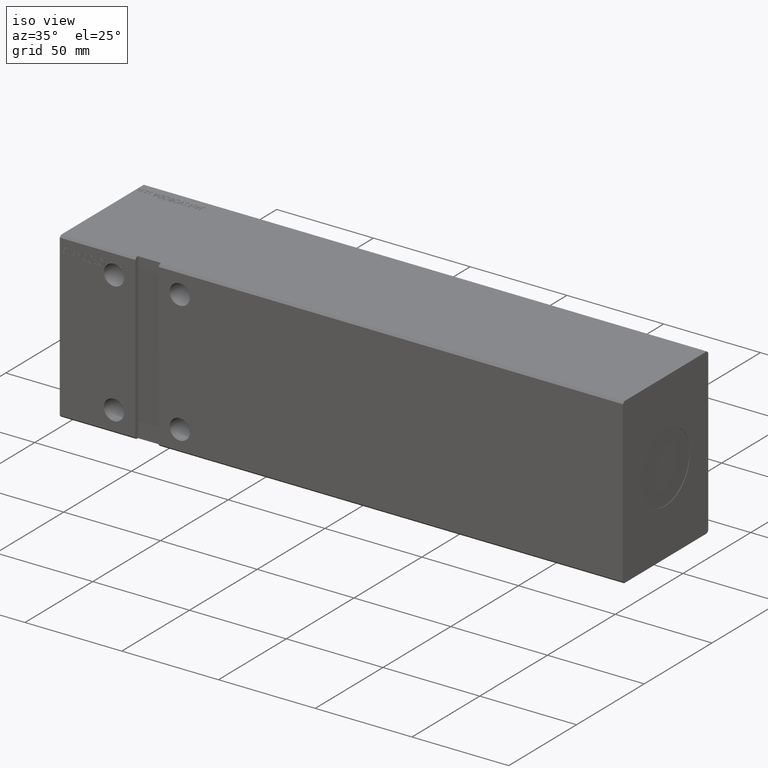
[diagram: clean part render]
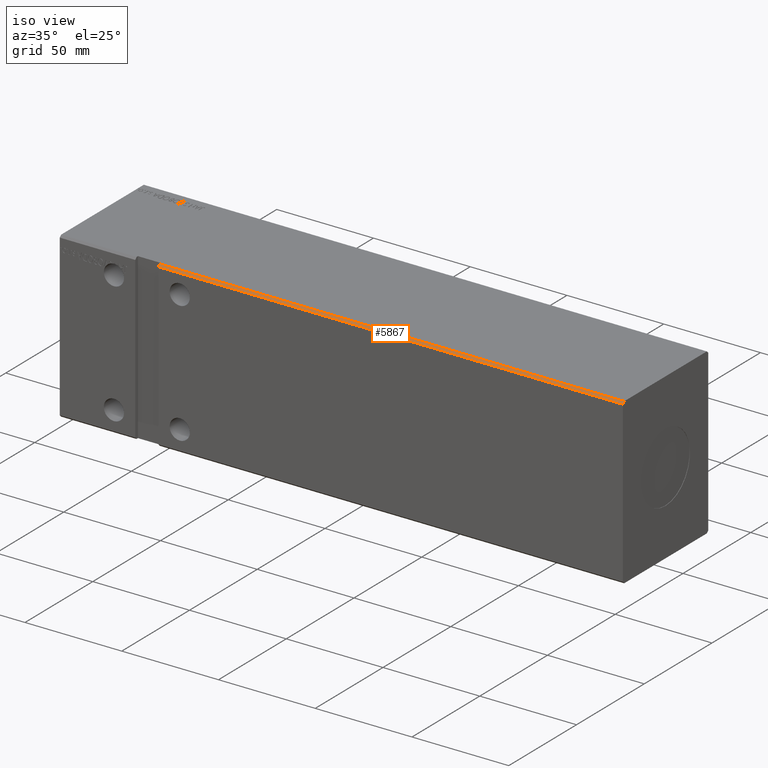
[diagram: same view with one face highlighted and labeled with its STEP entity id]
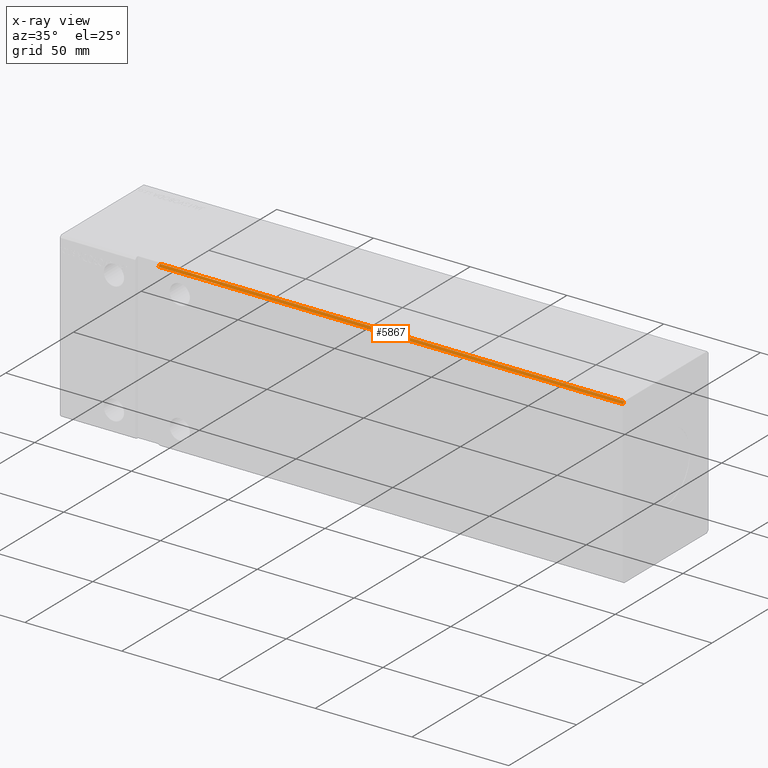
[diagram: x-ray of the same camera — body ghosted, the highlighted face saturated]
A machine part, iso view. The second image highlights one B-rep face of the part: STEP entity #5867.
The next image is the same camera in x-ray: the body ghosted, the highlighted face saturated — about 0% of this face is hidden behind the body in this view.
In plain terms, the highlighted planar face has unit normal (0, 0.7071, -0.7071).
Its self-contained STEP definition (entity closure, byte-faithful):
#113 = LINE ( 'NONE', #21667, #705 ) ;
#705 = VECTOR ( 'NONE', #31799, 1000.000000000000000 ) ;
#712 = VERTEX_POINT ( 'NONE', #15447 ) ;
#776 = EDGE_CURVE ( 'NONE', #712, #31767, #22275, .T. ) ;
#1405 = EDGE_CURVE ( 'NONE', #12175, #712, #113, .T. ) ;
#2036 = VECTOR ( 'NONE', #40970, 999.9999999999998863 ) ;
#2099 = ORIENTED_EDGE ( 'NONE', *, *, #1405, .T. ) ;
#4350 = LINE ( 'NONE', #29410, #14008 ) ;
#5867 = ADVANCED_FACE ( 'NONE', ( #25725 ), #18690, .F. ) ;
#6073 = EDGE_CURVE ( 'NONE', #12175, #24454, #40763, .T. ) ;
#6340 = CARTESIAN_POINT ( 'NONE',  ( 291.0000000000000000, -31.50000000000000000, 41.49999999999999289 ) ) ;
#6528 = EDGE_LOOP ( 'NONE', ( #2099, #19475, #30870, #22231 ) ) ;
#11993 = CARTESIAN_POINT ( 'NONE',  ( 291.0000000000000000, -30.50000000000000355, 42.49999999999999289 ) ) ;
#12175 = VERTEX_POINT ( 'NONE', #11993 ) ;
#14008 = VECTOR ( 'NONE', #26513, 1000.000000000000000 ) ;
#15104 = CARTESIAN_POINT ( 'NONE',  ( 51.00000000000000000, -31.50000000000000000, 41.49999999999999289 ) ) ;
#15447 = CARTESIAN_POINT ( 'NONE',  ( 51.00000000000000000, -30.50000000000000355, 42.49999999999999289 ) ) ;
#15480 = EDGE_CURVE ( 'NONE', #24454, #31767, #4350, .T. ) ;
#18690 = PLANE ( 'NONE',  #26504 ) ;
#19475 = ORIENTED_EDGE ( 'NONE', *, *, #776, .T. ) ;
#21667 = CARTESIAN_POINT ( 'NONE',  ( 291.0000000000000000, -30.50000000000000355, 42.49999999999999289 ) ) ;
#21941 = CARTESIAN_POINT ( 'NONE',  ( 291.0000000000000000, -30.50000000000000355, 42.49999999999999289 ) ) ;
#22231 = ORIENTED_EDGE ( 'NONE', *, *, #6073, .F. ) ;
#22275 = LINE ( 'NONE', #23093, #22462 ) ;
#22462 = VECTOR ( 'NONE', #22682, 999.9999999999998863 ) ;
#22682 = DIRECTION ( 'NONE',  ( 2.308959498064379436E-16, -0.7071067811865462405, -0.7071067811865489050 ) ) ;
#23093 = CARTESIAN_POINT ( 'NONE',  ( 50.99999999999999289, -30.50000000000004263, 42.49999999999995737 ) ) ;
#24454 = VERTEX_POINT ( 'NONE', #6340 ) ;
#25725 = FACE_OUTER_BOUND ( 'NONE', #6528, .T. ) ;
#26504 = AXIS2_PLACEMENT_3D ( 'NONE', #31317, #38330, #28225 ) ;
#26513 = DIRECTION ( 'NONE',  ( -1.000000000000000000, -0.000000000000000000, -0.000000000000000000 ) ) ;
#28225 = DIRECTION ( 'NONE',  ( 0.000000000000000000, 0.7071067811865462405, 0.7071067811865489050 ) ) ;
#29410 = CARTESIAN_POINT ( 'NONE',  ( 291.0000000000000000, -31.50000000000000000, 41.49999999999999289 ) ) ;
#30870 = ORIENTED_EDGE ( 'NONE', *, *, #15480, .F. ) ;
#31317 = CARTESIAN_POINT ( 'NONE',  ( 291.0000000000000000, -30.50000000000000355, 42.49999999999999289 ) ) ;
#31767 = VERTEX_POINT ( 'NONE', #15104 ) ;
#31799 = DIRECTION ( 'NONE',  ( -1.000000000000000000, -0.000000000000000000, -0.000000000000000000 ) ) ;
#38330 = DIRECTION ( 'NONE',  ( 0.000000000000000000, 0.7071067811865489050, -0.7071067811865462405 ) ) ;
#40763 = LINE ( 'NONE', #21941, #2036 ) ;
#40970 = DIRECTION ( 'NONE',  ( 0.000000000000000000, -0.7071067811865462405, -0.7071067811865489050 ) ) ;